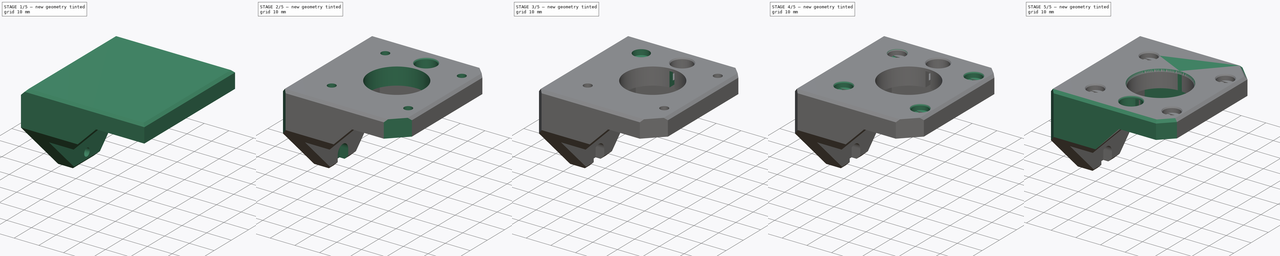
[diagram: build sequence overview — one tinted view per stage of 5, left to right]
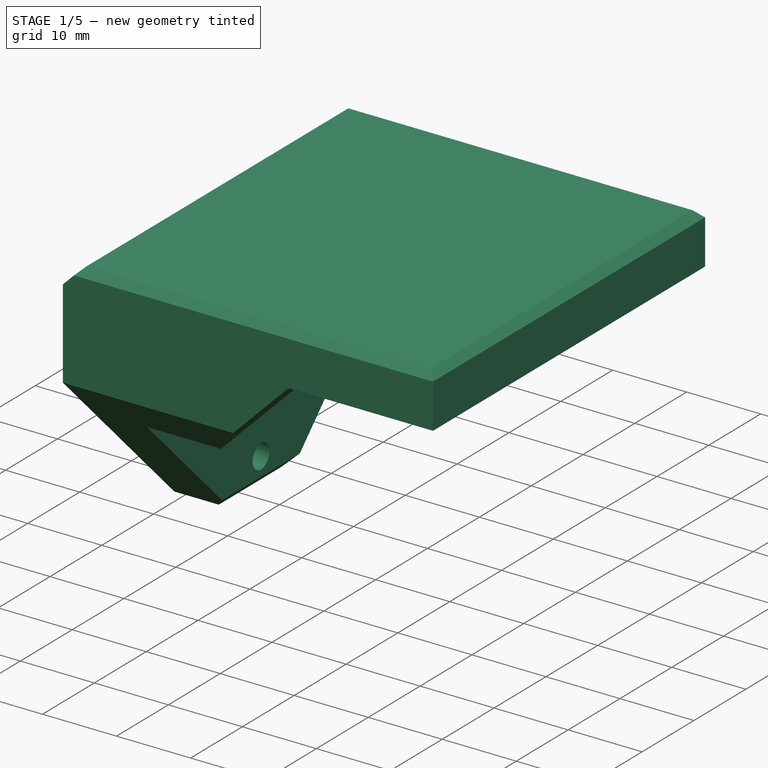
[diagram: stage 1 of 5 — iso view after this stage's code; geometry added in this stage tinted green]
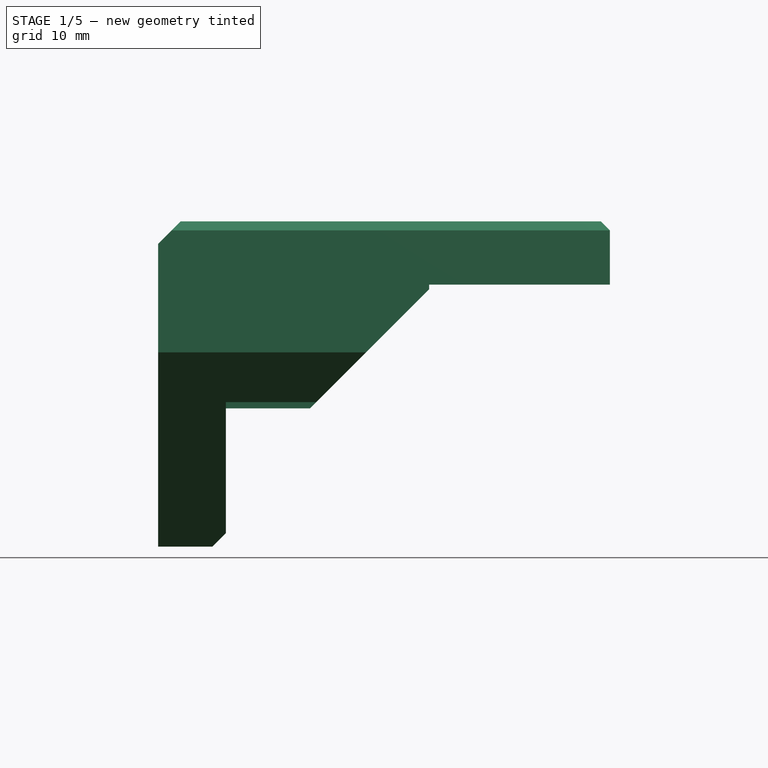
[diagram: stage 1 of 5 — front view after this stage's code; geometry added in this stage tinted green]
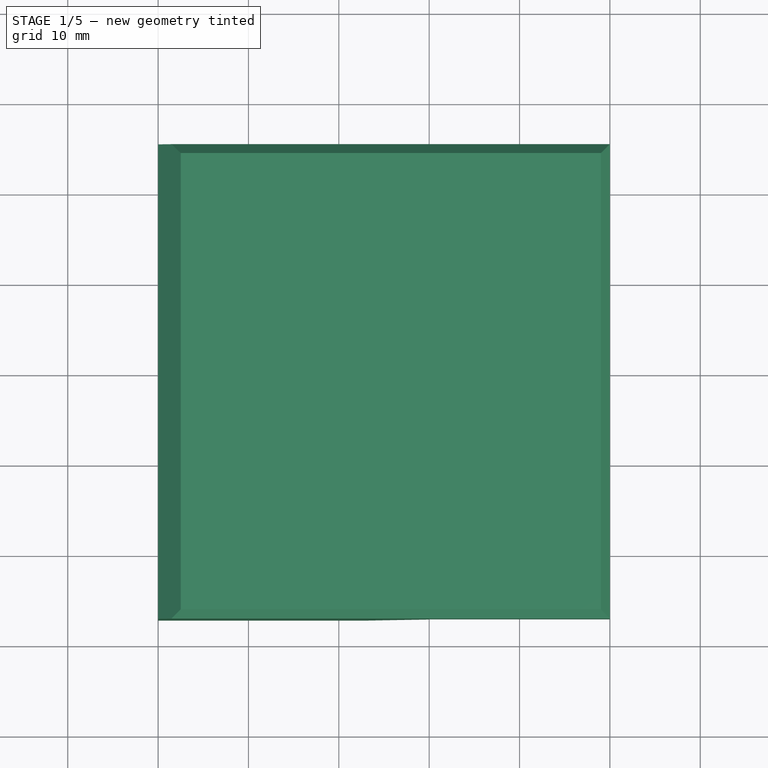
[diagram: stage 1 of 5 — top view after this stage's code; geometry added in this stage tinted green]
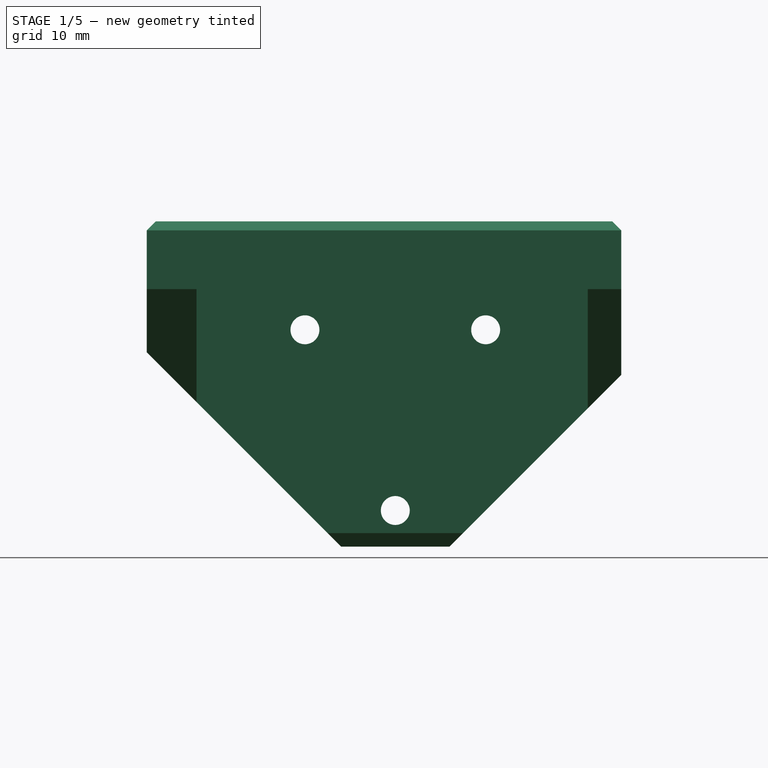
[diagram: stage 1 of 5 — right view after this stage's code; geometry added in this stage tinted green]
FCSTD DOCUMENT  (FreeCAD 0.22R38231 (Git))
Label: _Z-Axis-Bottom
License: Creative Commons Attribution 4.0
LicenseURL: https://creativecommons.org/licenses/by/4.0/
objects: Sketcher::SketchObject×12, PartDesign::Pocket×11, PartDesign::Chamfer×4, PartDesign::Mirrored×2, PartDesign::Body×2, PartDesign::Pad×1, PartDesign::Plane×1, PartDesign::MultiTransform×1, PartDesign::FeatureBase×1, Part::Mirroring×1
note: 72 computed .brp shape members not serialized (recipe doc carries the construction recipe); baked Part::Feature solids carry a one-line shape summary decoded from their .brp

FEATURE [Sketcher::SketchObject] Sketch
  AttachmentSupport = -> [XZ_Plane]
  FullyConstrained = true
  MapMode = 5
  Placement = pos=(0,0,0) rot=(1,0,0;1.5708rad)
  sketch-geometry (11):
    g0: LineSegment StartX=0 StartY=-36 StartZ=0 EndX=6 EndY=-36 EndZ=0
    g1: LineSegment StartX=6 StartY=-36 StartZ=0 EndX=7.5 EndY=-34.5 EndZ=0
    g2: LineSegment StartX=7.5 StartY=-34.5 StartZ=0 EndX=7.5 EndY=-30 EndZ=0
    g3: LineSegment StartX=7.5 StartY=-30 StartZ=0 EndX=30 EndY=-7.5 EndZ=0
    g4: LineSegment StartX=30 StartY=-7.5 StartZ=0 EndX=30 EndY=-7 EndZ=0
    g5: LineSegment StartX=30 StartY=-7 StartZ=0 EndX=50 EndY=-7 EndZ=0
    g6: LineSegment StartX=50 StartY=-7 StartZ=0 EndX=50 EndY=-1 EndZ=0
    g7: LineSegment StartX=50 StartY=-1 StartZ=0 EndX=49 EndY=0 EndZ=0
    g8: LineSegment StartX=49 StartY=0 StartZ=0 EndX=2.5 EndY=0 EndZ=0
    g9: LineSegment StartX=2.5 StartY=0 StartZ=0 EndX=0 EndY=-2.5 EndZ=0
    g10: LineSegment StartX=0 StartY=-2.5 StartZ=0 EndX=0 EndY=-36 EndZ=0
  constraints (33):
    c: PointOnObject(g0,g-2)
    c: Horizontal(g0)
    c: Coincident(g0,g1)
    c: Coincident(g1,g2)
    c: Vertical(g2)
    c: Coincident(g3,g4)
    c: Vertical(g4)
    c: Coincident(g4,g5)
    c: Horizontal(g5)
    c: Coincident(g5,g6)
    c: Vertical(g6)
    c: Coincident(g6,g7)
    c: PointOnObject(g7,g-1)
    c: Coincident(g7,g8)
    c: PointOnObject(g8,g-1)
    c: Coincident(g8,g9)
    c: PointOnObject(g9,g-2)
    c: Coincident(g9,g10)
    c: Coincident(g10,g0)
    c: Angle(g3,g-2) = 0.785398
    c: DistanceY(g5,g-1) = 7
    c: Angle(g-1,g7) = 2.35619
    c: DistanceX(g-1,g6) = 50
    c: DistanceY(g6,g7) = 1
    c: Perpendicular(g9,g7)
    c: DistanceY(g9,g-1) = 2.5
    c: DistanceY(g0,g-1) = 36
    c: DistanceY(g3,g5) = 0.5
    c: DistanceX(g-1,g4) = 30
    c: Coincident(g2,g3)
    c: Parallel(g3,g1)
    c: DistanceX(g0,g1) = 7.5
    c: DistanceY(g0,g1) = 1.5
FEATURE [PartDesign::Pad] Pad
  Direction = (0,-1,2e-16)
  Length = 27.5
  Length2 = 25
  Placement = pos=(0,0,0) rot=(1,0,0;1.5708rad)
  Profile = -> Sketch
  ReferenceAxis = -> Sketch [N_Axis]
  Refine = true
  Suppressed = false
  Type = 4
FEATURE [Sketcher::SketchObject] Sketch001
  AttachmentSupport = -> [YZ_Plane]
  FullyConstrained = true
  MapMode = 5
  Placement = pos=(0,0,0) rot=(0.57735,0.57735,0.57735;2.0944rad)
  sketch-geometry (12):
    g0: LineSegment StartX=-28.5 StartY=1 StartZ=0 EndX=-28.5 EndY=-37 EndZ=0
    g1: LineSegment StartX=-28.5 StartY=-37 StartZ=0 EndX=26 EndY=-37 EndZ=0
    g2: LineSegment StartX=26 StartY=-37 StartZ=0 EndX=26 EndY=1 EndZ=0
    g3: LineSegment StartX=26 StartY=1 StartZ=0 EndX=-28.5 EndY=1 EndZ=0
    g4: LineSegment StartX=-26.5 StartY=0 StartZ=0 EndX=-27.5 EndY=-1 EndZ=0
    g5: LineSegment StartX=-27.5 StartY=-1 StartZ=0 EndX=-27.5 EndY=-14.5 EndZ=0
    g6: LineSegment StartX=-27.5 StartY=-14.5 StartZ=0 EndX=-6 EndY=-36 EndZ=0
    g7: LineSegment StartX=-6 StartY=-36 StartZ=0 EndX=6 EndY=-36 EndZ=0
    g8: LineSegment StartX=6 StartY=-36 StartZ=0 EndX=25 EndY=-17 EndZ=0
    g9: LineSegment StartX=25 StartY=-17 StartZ=0 EndX=25 EndY=-1 EndZ=0
    g10: LineSegment StartX=25 StartY=-1 StartZ=0 EndX=24 EndY=0 EndZ=0
    g11: LineSegment StartX=24 StartY=0 StartZ=0 EndX=-26.5 EndY=0 EndZ=0
  constraints (35):
    c: Coincident(g0,g1)
    c: Coincident(g1,g2)
    c: Coincident(g2,g3)
    c: Coincident(g3,g0)
    c: Vertical(g0)
    c: Vertical(g2)
    c: Horizontal(g1)
    c: Horizontal(g3)
    c: DistanceY(g-1,g2) = 1
    c: DistanceX(g-1,g2) = 26
    c: DistanceX(g0,g-1) = 28.5
    c: DistanceY(g0,g0) = 38
    c: PointOnObject(g4,g-1)
    c: Coincident(g4,g5)
    c: Vertical(g5)
    c: Coincident(g5,g6)
    c: Coincident(g6,g7)
    c: Coincident(g7,g8)
    c: Coincident(g8,g9)
    c: Vertical(g9)
    c: Coincident(g9,g10)
    c: PointOnObject(g10,g-1)
    c: Coincident(g10,g11)
    c: Coincident(g11,g4)
    c: DistanceX(g4,g-1) = 27.5
    c: DistanceX(g-1,g9) = 25
    c: DistanceY(g4,g4) = 1
    c: Angle(g0,g4) = 2.35619
    c: Perpendicular(g10,g4)
    c: Equal(g10,g4)
    c: DistanceY(g7,g-1) = 36
    c: DistanceX(g7,g7) = 12
    c: Symmetric(g6,g7,g-2)
    c: Perpendicular(g6,g4)
    c: Perpendicular(g8,g10)
FEATURE [PartDesign::Pocket] Pocket
  BaseFeature = -> Pad
  Direction = (-1,0,0)
  Length = 5
  Length2 = 5
  Placement = pos=(0,0,0) rot=(1,0,0;1.5708rad)
  Profile = -> Sketch001
  ReferenceAxis = -> Sketch001 [N_Axis]
  Refine = true
  Reversed = true
  Suppressed = false
  Type = 1
FEATURE [Sketcher::SketchObject] Sketch002
  AttachmentOffset = pos=(0,0,-7) rot=(0,0,1;0rad)
  AttachmentSupport = -> [XY_Plane]
  FullyConstrained = true
  MapMode = 5
  Placement = pos=(0,0,-7) rot=(0,0,1;0rad)
  sketch-geometry (4):
    g0: LineSegment StartX=7.5 StartY=21.3 StartZ=0 EndX=7.5 EndY=-22 EndZ=0
    g1: LineSegment StartX=7.5 StartY=-22 StartZ=0 EndX=50 EndY=-22 EndZ=0
    g2: LineSegment StartX=50 StartY=-22 StartZ=0 EndX=50 EndY=21.3 EndZ=0
    g3: LineSegment StartX=50 StartY=21.3 StartZ=0 EndX=7.5 EndY=21.3 EndZ=0
  constraints (12):
    c: Coincident(g0,g1)
    c: Coincident(g1,g2)
    c: Coincident(g2,g3)
    c: Coincident(g3,g0)
    c: Vertical(g0)
    c: Vertical(g2)
    c: Horizontal(g1)
    c: Horizontal(g3)
    c: DistanceY(g0,g-1) = 22
    c: DistanceX(g-1,g0) = 7.5
    c: DistanceY(g-1,g0) = 21.3
    c: DistanceX(g-1,g2) = 50
FEATURE [PartDesign::Pocket] Pocket001
  BaseFeature = -> Pocket
  Direction = (0,0,-1)
  Length = 5
  Length2 = 5
  Placement = pos=(0,0,0) rot=(1,0,0;1.5708rad)
  Profile = -> Sketch002
  ReferenceAxis = -> Sketch002 [N_Axis]
  Refine = true
  Suppressed = false
  Type = 1
FEATURE [Sketcher::SketchObject] Sketch003
  AttachmentSupport = -> [YZ_Plane]
  FullyConstrained = true
  MapMode = 5
  Placement = pos=(0,0,0) rot=(0.57735,0.57735,0.57735;2.0944rad)
  sketch-geometry (3):
    g0: Circle CenterX=-10 CenterY=-12 CenterZ=0 NormalX=0 NormalY=0 NormalZ=1 AngleXU=0 Radius=1.6
    g1: Circle CenterX=10 CenterY=-12 CenterZ=0 NormalX=0 NormalY=0 NormalZ=1 AngleXU=0 Radius=1.6
    g2: Circle CenterX=0 CenterY=-32 CenterZ=0 NormalX=0 NormalY=0 NormalZ=1 AngleXU=0 Radius=1.6
  constraints (8):
    c: Symmetric(g0,g1,g-2)
    c: DistanceX(g0,g1) = 20
    c: DistanceY(g0,g-1) = 12
    c: Equal(g0,g1)
    c: Diameter(g0) = 3.2
    c: PointOnObject(g2,g-2)
    c: DistanceY(g2,g0) = 20
    c: Equal(g1,g2)
FEATURE [PartDesign::Pocket] Pocket002
  BaseFeature = -> Pocket001
  Direction = (-1,0,0)
  Length = 5
  Length2 = 5
  Placement = pos=(0,0,0) rot=(1,0,0;1.5708rad)
  Profile = -> Sketch003
  ReferenceAxis = -> Sketch003 [N_Axis]
  Refine = true
  Reversed = true
  Suppressed = false
  Type = 1
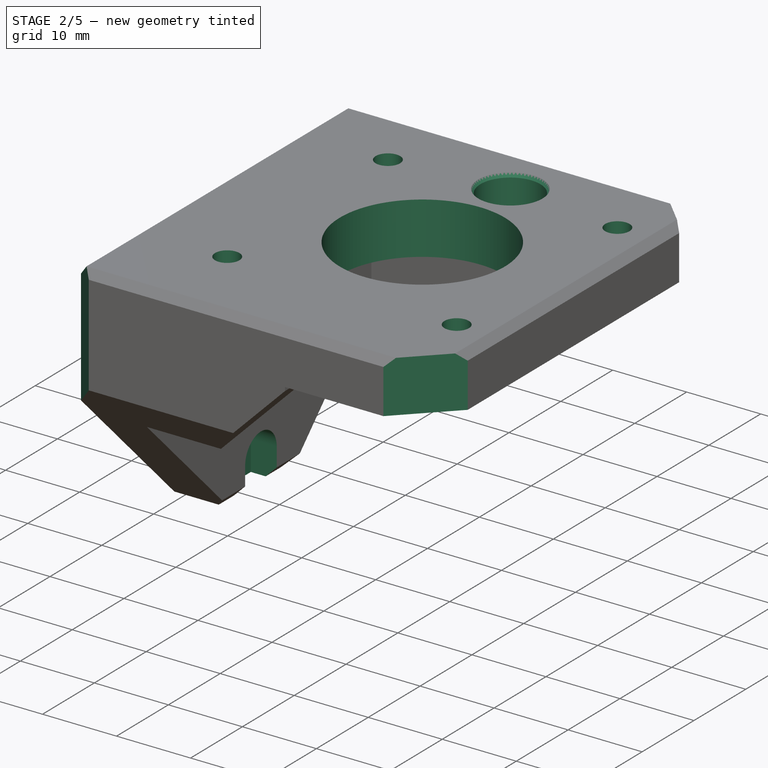
[diagram: stage 2 of 5 — iso view after this stage's code; geometry added in this stage tinted green]
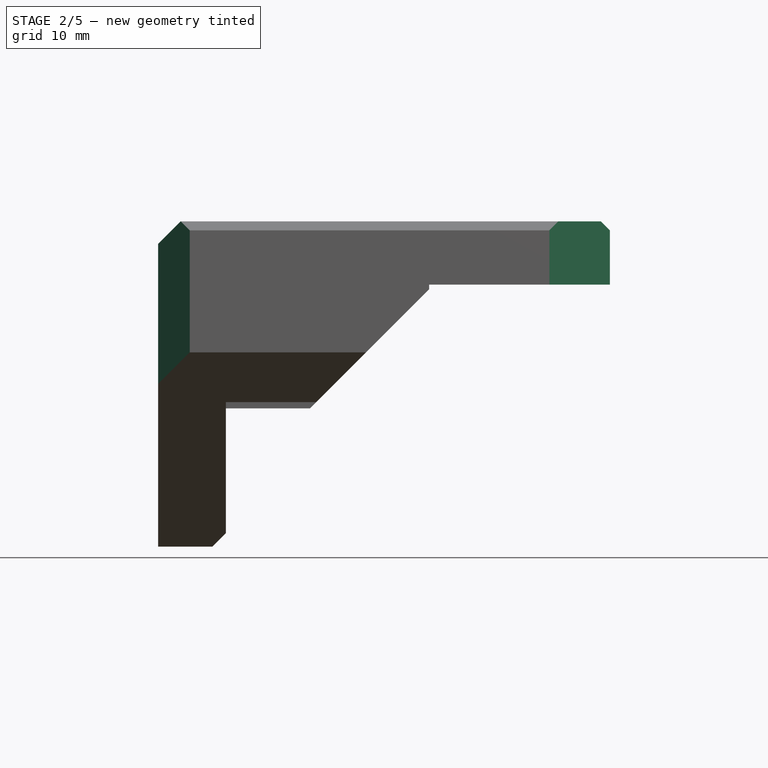
[diagram: stage 2 of 5 — front view after this stage's code; geometry added in this stage tinted green]
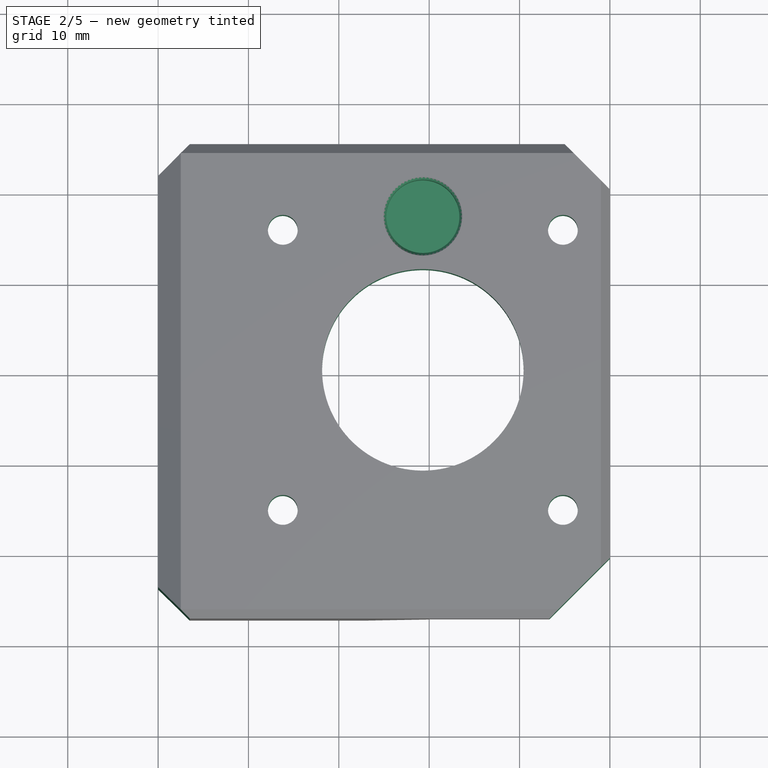
[diagram: stage 2 of 5 — top view after this stage's code; geometry added in this stage tinted green]
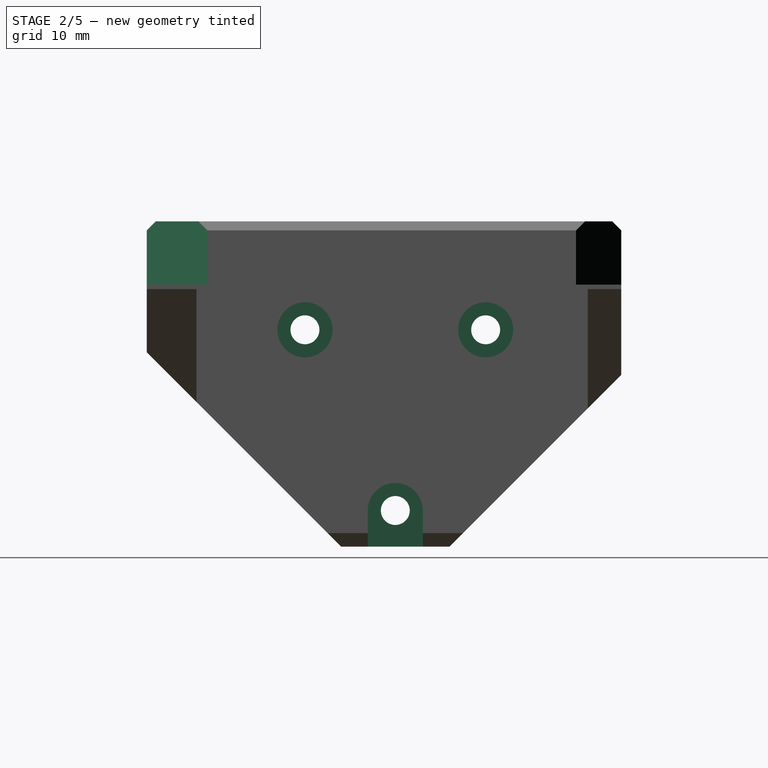
[diagram: stage 2 of 5 — right view after this stage's code; geometry added in this stage tinted green]
FEATURE [Sketcher::SketchObject] Sketch004
  AttachmentOffset = pos=(0,0,7.5) rot=(0,0,1;0rad)
  AttachmentSupport = -> [YZ_Plane]
  ExternalGeometry = -> [Sketch003]
  FullyConstrained = true
  MapMode = 5
  Placement = pos=(7.5,0,0) rot=(0.57735,0.57735,0.57735;2.0944rad)
  sketch-geometry (6):
    g0: Circle CenterX=-10 CenterY=-12 CenterZ=0 NormalX=0 NormalY=0 NormalZ=1 AngleXU=0 Radius=3.05
    g1: Circle CenterX=10 CenterY=-12 CenterZ=0 NormalX=0 NormalY=0 NormalZ=1 AngleXU=0 Radius=3.05
    g2: ArcOfCircle CenterX=0 CenterY=-32 CenterZ=0 NormalX=0 NormalY=0 NormalZ=1 AngleXU=0 Radius=3.05 StartAngle=0 EndAngle=3.14159
    g3: LineSegment StartX=-3.05 StartY=-32 StartZ=0 EndX=-3.05 EndY=-36.5 EndZ=0
    g4: LineSegment StartX=-3.05 StartY=-36.5 StartZ=0 EndX=3.05 EndY=-36.5 EndZ=0
    g5: LineSegment StartX=3.05 StartY=-36.5 StartZ=0 EndX=3.05 EndY=-32 EndZ=0
  constraints (14):
    c: Coincident(g0,g-3)
    c: Diameter(g1) = 6.1
    c: Equal(g1,g0)
    c: Coincident(g2,g-5)
    c: Tangent(g2,g3) = -1.5708
    c: Coincident(g3,g4)
    c: Horizontal(g4)
    c: Coincident(g4,g5)
    c: Vertical(g5)
    c: Tangent(g5,g2) = -1.5708
    c: Vertical(g3)
    c: Equal(g0,g2)
    c: DistanceY(g3,g3) = 4.5
    c: Coincident(g1,g-4)
FEATURE [PartDesign::Pocket] Pocket003
  BaseFeature = -> Pocket002
  Direction = (-1,0,0)
  Length = 3.5
  Length2 = 5
  Placement = pos=(0,0,0) rot=(1,0,0;1.5708rad)
  Profile = -> Sketch004
  ReferenceAxis = -> Sketch004 [N_Axis]
  Refine = true
  Suppressed = false
  Type = 0
FEATURE [Sketcher::SketchObject] Sketch005
  AttachmentSupport = -> [XY_Plane]
  FullyConstrained = true
  MapMode = 5
  sketch-geometry (17):
    g0: LineSegment StartX=-2 StartY=27 StartZ=0 EndX=-2 EndY=-29.5 EndZ=0
    g1: LineSegment StartX=-2 StartY=-29.5 StartZ=0 EndX=52 EndY=-29.5 EndZ=0
    g2: LineSegment StartX=52 StartY=-29.5 StartZ=0 EndX=52 EndY=27 EndZ=0
    g3: LineSegment StartX=52 StartY=27 StartZ=0 EndX=-2 EndY=27 EndZ=0
    g4: LineSegment StartX=-4e-16 StartY=21.5 StartZ=0 EndX=0 EndY=-24 EndZ=0
    g5: LineSegment StartX=0 StartY=-24 StartZ=0 EndX=3.5 EndY=-27.5 EndZ=0
    g6: LineSegment StartX=3.5 StartY=-27.5 StartZ=0 EndX=43.3 EndY=-27.5 EndZ=0
    g7: LineSegment StartX=43.3 StartY=-27.5 StartZ=0 EndX=50 EndY=-20.8 EndZ=0
    g8: LineSegment StartX=50 StartY=-20.8 StartZ=0 EndX=50 EndY=20 EndZ=0
    g9: LineSegment StartX=50 StartY=20 StartZ=0 EndX=45 EndY=25 EndZ=0
    g10: LineSegment StartX=45 StartY=25 StartZ=0 EndX=3.5 EndY=25 EndZ=0
    g11: LineSegment StartX=3.5 StartY=25 StartZ=0 EndX=-4e-16 EndY=21.5 EndZ=0
    g12: Circle CenterX=13.8 CenterY=15.5 CenterZ=0 NormalX=0 NormalY=0 NormalZ=1 AngleXU=0 Radius=1.65
    g13: Circle CenterX=44.8 CenterY=15.5 CenterZ=0 NormalX=0 NormalY=0 NormalZ=1 AngleXU=0 Radius=1.65
    g14: Circle CenterX=44.8 CenterY=-15.5 CenterZ=0 NormalX=0 NormalY=0 NormalZ=1 AngleXU=0 Radius=1.65
    g15: Circle CenterX=13.8 CenterY=-15.5 CenterZ=0 NormalX=0 NormalY=0 NormalZ=1 AngleXU=0 Radius=1.65
    g16: Circle CenterX=29.3 CenterY=0 CenterZ=0 NormalX=0 NormalY=0 NormalZ=1 AngleXU=0 Radius=11.15
  constraints (50):
    c: Coincident(g0,g1)
    c: Coincident(g1,g2)
    c: Coincident(g2,g3)
    c: Coincident(g3,g0)
    c: Vertical(g0)
    c: Vertical(g2)
    c: Horizontal(g1)
    c: Horizontal(g3)
    c: DistanceX(g0,g-1) = 2
    c: DistanceX(g3,g3) = 54
    c: DistanceY(g-1,g0) = 27
    c: DistanceY(g0,g-1) = 29.5
    c: PointOnObject(g4,g-2)
    c: PointOnObject(g4,g-2)
    c: Coincident(g4,g5)
    c: Coincident(g5,g6)
    c: Horizontal(g6)
    c: Coincident(g6,g7)
    c: Coincident(g7,g8)
    c: Vertical(g8)
    c: Coincident(g8,g9)
    c: Coincident(g9,g10)
    c: Horizontal(g10)
    c: Coincident(g10,g11)
    c: Coincident(g11,g4)
    c: DistanceY(g-1,g10) = 25
    c: DistanceY(g5,g-1) = 27.5
    c: DistanceX(g-1,g7) = 50
    c: Angle(g7,g6) = 2.35619
    c: Perpendicular(g9,g7)
    c: Perpendicular(g11,g9)
    c: Perpendicular(g5,g11)
    c: Equal(g5,g11)
    c: DistanceY(g5,g4) = 3.5
    c: DistanceY(g6,g7) = 6.7
    c: DistanceY(g8,g9) = 5
    c: Horizontal(g12,g13)
    c: Horizontal(g15,g14)
    c: Vertical(g12,g15)
    c: Vertical(g13,g14)
    c: PointOnObject(g16,g-1)
    c: Diameter(g16) = 22.3
    c: DistanceX(g-1,g16) = 29.3
    c: Symmetric(g12,g14,g16)
    c: DistanceY(g15,g12) = 31
    c: DistanceX(g15,g14) = 31
    c: Equal(g13,g12)
    c: Equal(g13,g15)
    c: Equal(g13,g14)
    c: Diameter(g13) = 3.3
FEATURE [PartDesign::Pocket] Pocket004
  BaseFeature = -> Pocket003
  Direction = (0,0,-1)
  Length = 5
  Length2 = 5
  Placement = pos=(0,0,0) rot=(1,0,0;1.5708rad)
  Profile = -> Sketch005
  ReferenceAxis = -> Sketch005 [N_Axis]
  Refine = true
  Suppressed = false
  Type = 1
FEATURE [Sketcher::SketchObject] Sketch006
  AttachmentSupport = -> [XY_Plane]
  FullyConstrained = true
  MapMode = 5
  sketch-geometry (1):
    g0: Circle CenterX=29.3 CenterY=17 CenterZ=0 NormalX=0 NormalY=0 NormalZ=1 AngleXU=0 Radius=4.05
  constraints (3):
    c: Diameter(g0) = 8.1
    c: DistanceX(g-1,g0) = 29.3
    c: DistanceY(g-1,g0) = 17
FEATURE [PartDesign::Pocket] Pocket005
  BaseFeature = -> Pocket004
  Direction = (0,0,-1)
  Length = 5.2
  Length2 = 5
  Placement = pos=(0,0,0) rot=(1,0,0;1.5708rad)
  Profile = -> Sketch006
  ReferenceAxis = -> Sketch006 [N_Axis]
  Refine = true
  Suppressed = false
  Type = 0
FEATURE [Sketcher::SketchObject] Sketch007
  AttachmentOffset = pos=(0,0,-7) rot=(0,0,1;0rad)
  AttachmentSupport = -> [XY_Plane]
  FullyConstrained = true
  MapMode = 5
  Placement = pos=(0,0,-7) rot=(0,0,1;0rad)
  sketch-geometry (4):
    g0: LineSegment StartX=28.3 StartY=0 StartZ=0 EndX=30.3 EndY=0 EndZ=0
    g1: LineSegment StartX=30.3 StartY=0 StartZ=0 EndX=30.3 EndY=18 EndZ=0
    g2: LineSegment StartX=30.3 StartY=18 StartZ=0 EndX=28.3 EndY=18 EndZ=0
    g3: LineSegment StartX=28.3 StartY=18 StartZ=0 EndX=28.3 EndY=0 EndZ=0
  constraints (12):
    c: Coincident(g0,g1)
    c: Coincident(g1,g2)
    c: Coincident(g2,g3)
    c: Coincident(g3,g0)
    c: Horizontal(g0)
    c: Horizontal(g2)
    c: Vertical(g1)
    c: Vertical(g3)
    c: DistanceY(g-1,g2) = 18
    c: DistanceX(g-1,g2) = 28.3
    c: DistanceX(g2,g2) = 2
    c: PointOnObject(g0,g-1)
FEATURE [PartDesign::Plane] DatumPlane
  AttachmentOffset = pos=(0,0,29.3) rot=(0,0,1;0rad)
  AttachmentSupport = -> [YZ_Plane]
  Length = 63.8181
  MapMode = 5
  Placement = pos=(29.3,0,0) rot=(0.57735,0.57735,0.57735;2.0944rad)
  ResizeMode = 0
  Width = 72.3181
FEATURE [PartDesign::Mirrored] Mirrored001
  MirrorPlane = -> DatumPlane
  Placement = pos=(0,0,0) rot=(1,0,0;1.5708rad)
  Refine = true
  Suppressed = false
  TransformMode = 0
FEATURE [PartDesign::Chamfer] Chamfer
  Angle = 45
  Base = -> Pocket005 [Edge106]
  BaseFeature = -> Pocket005
  ChamferType = 1
  FlipDirection = false
  Placement = pos=(0,0,0) rot=(1,0,0;1.5708rad)
  Refine = true
  Size = 0.3
  Size2 = 0.5
  SupportTransform = false
  Suppressed = false
  UseAllEdges = false
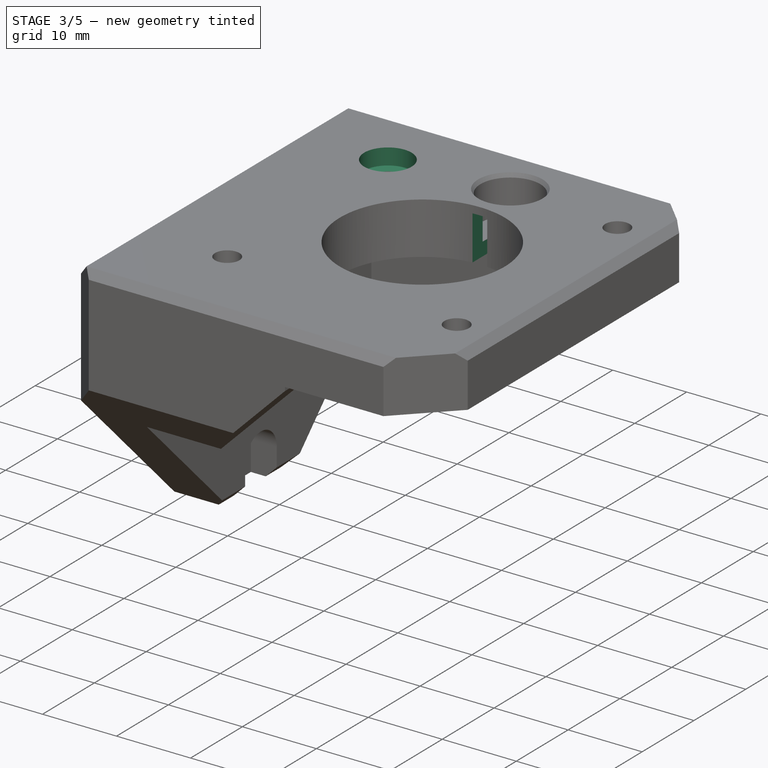
[diagram: stage 3 of 5 — iso view after this stage's code; geometry added in this stage tinted green]
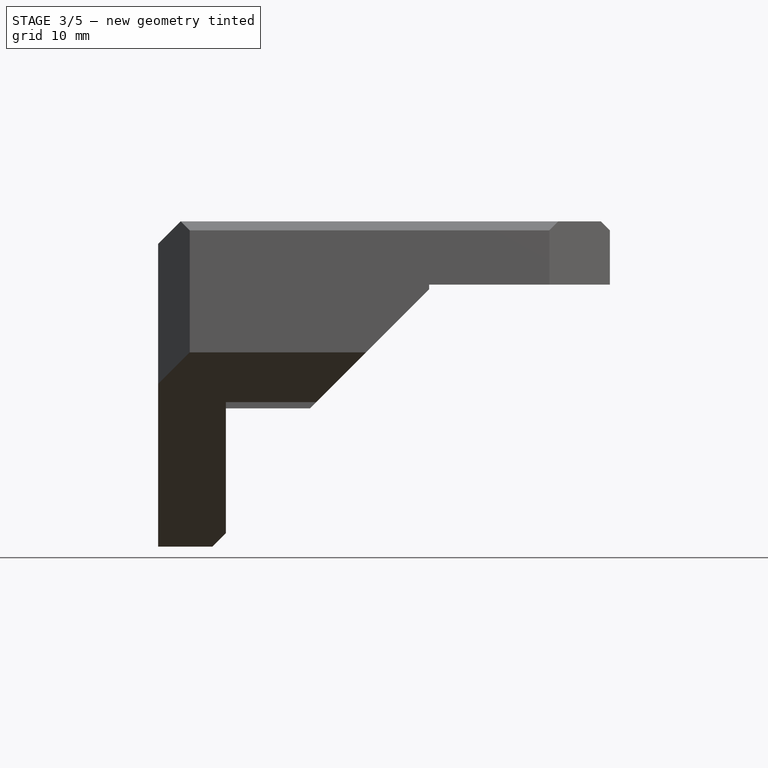
[diagram: stage 3 of 5 — front view after this stage's code; geometry added in this stage tinted green]
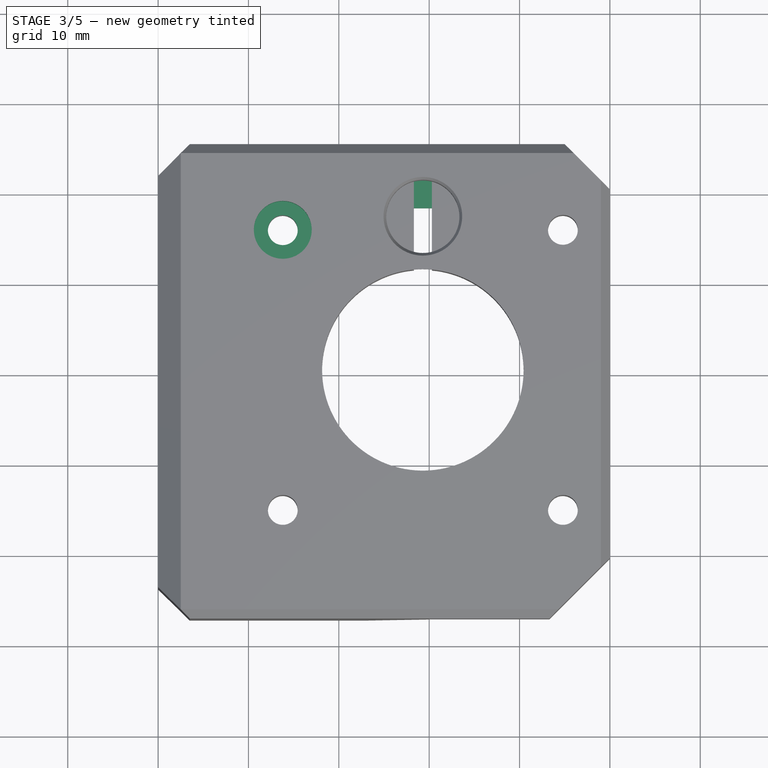
[diagram: stage 3 of 5 — top view after this stage's code; geometry added in this stage tinted green]
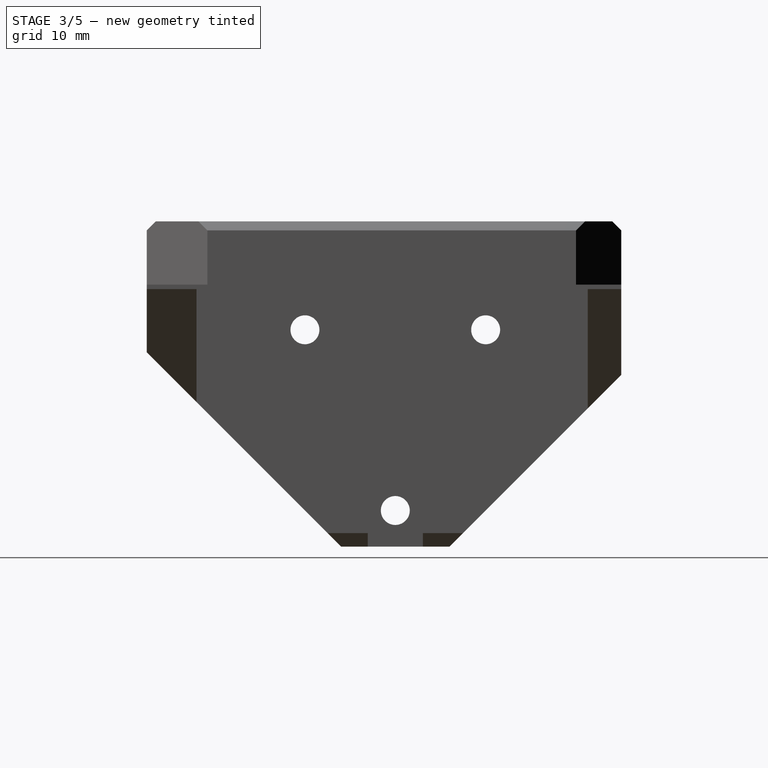
[diagram: stage 3 of 5 — right view after this stage's code; geometry added in this stage tinted green]
FEATURE [PartDesign::Pocket] Pocket006
  BaseFeature = -> Chamfer
  Direction = (0,0,-1)
  Length = 6
  Length2 = 5
  Placement = pos=(0,0,0) rot=(1,0,0;1.5708rad)
  Profile = -> Sketch007
  ReferenceAxis = -> Sketch007 [N_Axis]
  Refine = true
  Reversed = true
  Suppressed = false
  Type = 0
FEATURE [Sketcher::SketchObject] Sketch008
  AttachmentSupport = -> [XY_Plane]
  ExternalGeometry = -> [Pocket006]
  FullyConstrained = false
  MapMode = 5
  sketch-geometry (4):
    g0: ArcOfCircle CenterX=29.3 CenterY=17 CenterZ=0 NormalX=0 NormalY=0 NormalZ=1 AngleXU=0 Radius=4.05 StartAngle=1.3213 EndAngle=1.82029
    g1: LineSegment StartX=28.3 StartY=20.9246 StartZ=0 EndX=28.3 EndY=17 EndZ=0
    g2: LineSegment StartX=28.3 StartY=17 StartZ=0 EndX=30.3 EndY=17 EndZ=0
    g3: LineSegment StartX=30.3 StartY=17 StartZ=0 EndX=30.3 EndY=20.9246 EndZ=0
  constraints (9):
    c: Coincident(g0,g1)
    c: Vertical(g1)
    c: Coincident(g1,g2)
    c: Horizontal(g2)
    c: Coincident(g2,g3)
    c: Coincident(g3,g0)
    c: Vertical(g3)
    c: Symmetric(g2,g1,g0)
    c: DistanceX(g2,g2) = 2
FEATURE [PartDesign::Pocket] Pocket007
  BaseFeature = -> Pocket006
  Direction = (0,0,-1)
  Length = 5.5
  Length2 = 5
  Placement = pos=(0,0,0) rot=(1,0,0;1.5708rad)
  Profile = -> Sketch008
  ReferenceAxis = -> Sketch008 [N_Axis]
  Refine = true
  Suppressed = false
  Type = 0
FEATURE [Sketcher::SketchObject] Sketch009
  AttachmentSupport = -> [XY_Plane]
  ExternalGeometry = -> [Pocket007]
  FullyConstrained = true
  MapMode = 5
  sketch-geometry (1):
    g0: Circle CenterX=13.8 CenterY=15.5 CenterZ=0 NormalX=0 NormalY=0 NormalZ=1 AngleXU=0 Radius=3.2
  constraints (2):
    c: Coincident(g0,g-3)
    c: Diameter(g0) = 6.4
FEATURE [PartDesign::Pocket] Pocket008
  BaseFeature = -> Pocket007
  Direction = (0,0,-1)
  Length = 2.2
  Length2 = 5
  Placement = pos=(0,0,0) rot=(1,0,0;1.5708rad)
  Profile = -> Sketch009
  ReferenceAxis = -> Sketch009 [N_Axis]
  Refine = true
  Suppressed = false
  Type = 0
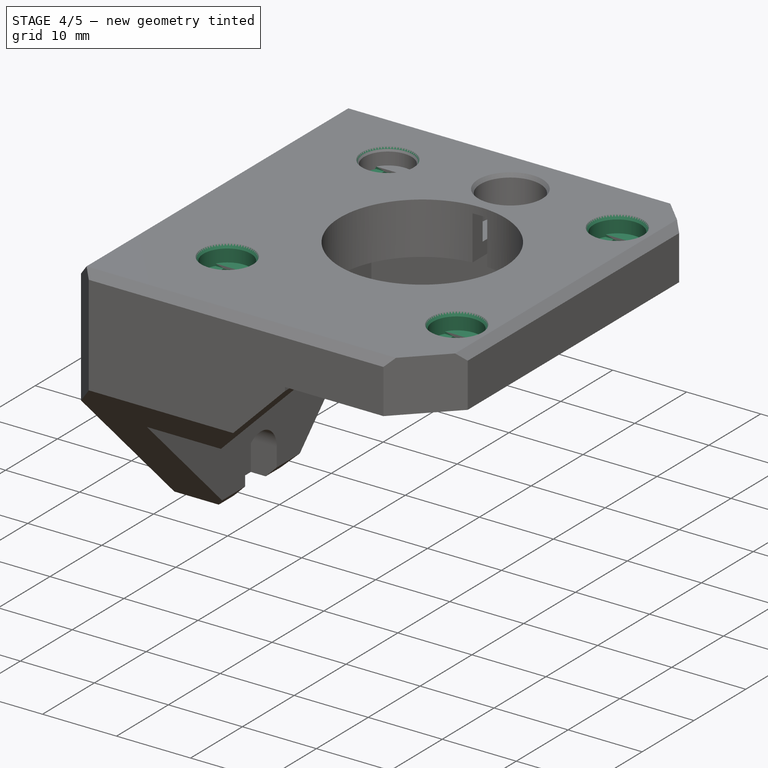
[diagram: stage 4 of 5 — iso view after this stage's code; geometry added in this stage tinted green]
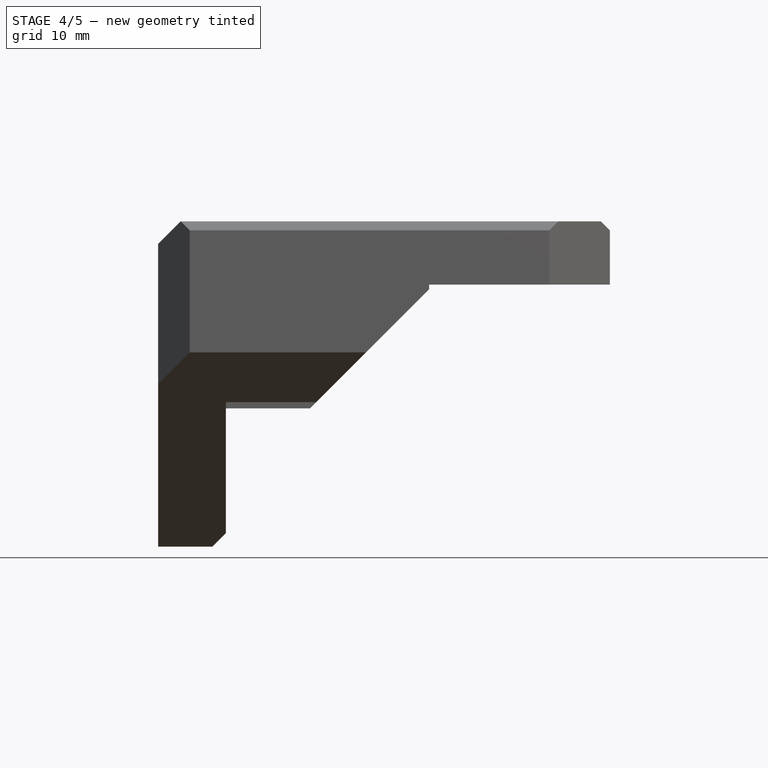
[diagram: stage 4 of 5 — front view after this stage's code; geometry added in this stage tinted green]
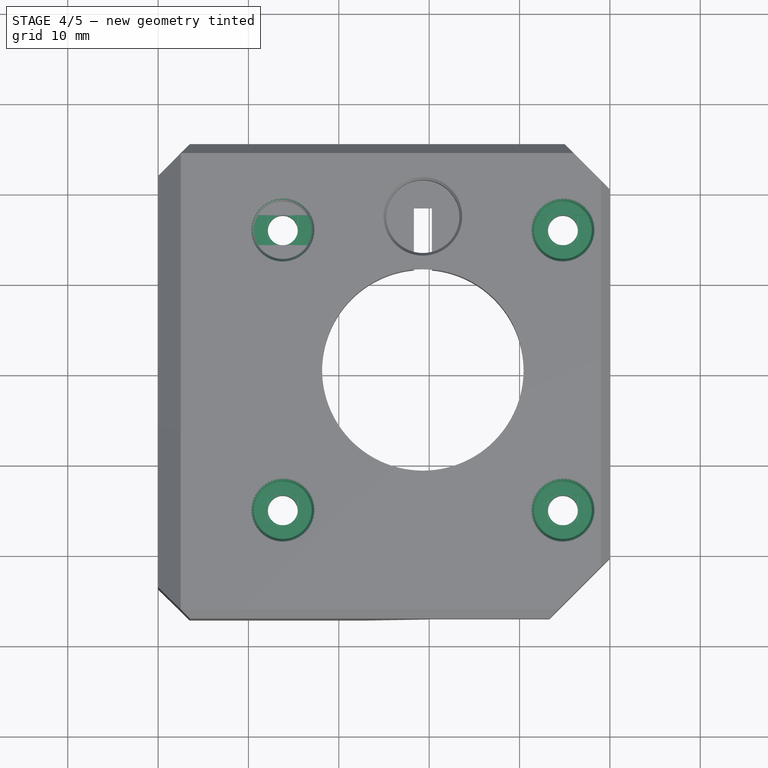
[diagram: stage 4 of 5 — top view after this stage's code; geometry added in this stage tinted green]
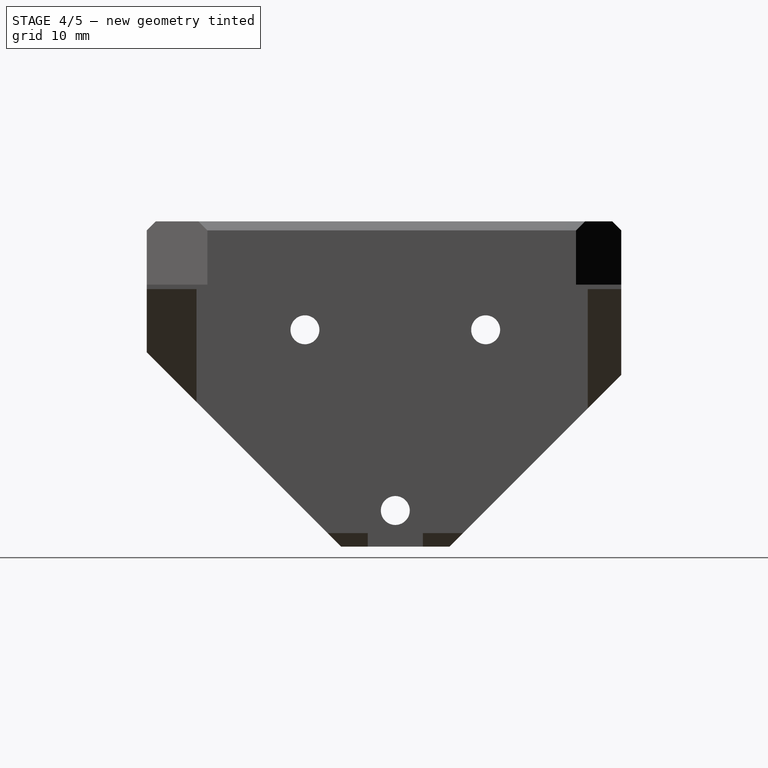
[diagram: stage 4 of 5 — right view after this stage's code; geometry added in this stage tinted green]
FEATURE [Sketcher::SketchObject] Sketch010
  AttachmentSupport = -> [XY_Plane]
  ExternalGeometry = -> [Sketch009]
  FullyConstrained = true
  MapMode = 5
  sketch-geometry (5):
    g0: LineSegment StartX=12.15 StartY=13.85 StartZ=0 EndX=15.45 EndY=13.85 EndZ=0
    g1: LineSegment StartX=15.45 StartY=13.85 StartZ=0 EndX=15.45 EndY=17.15 EndZ=0
    g2: LineSegment StartX=15.45 StartY=17.15 StartZ=0 EndX=12.15 EndY=17.15 EndZ=0
    g3: LineSegment StartX=12.15 StartY=17.15 StartZ=0 EndX=12.15 EndY=13.85 EndZ=0
    g4: GeomPoint X=13.8 Y=15.5 Z=0
  constraints (12):
    c: Coincident(g0,g1)
    c: Coincident(g1,g2)
    c: Coincident(g2,g3)
    c: Coincident(g3,g0)
    c: Horizontal(g0)
    c: Horizontal(g2)
    c: Vertical(g1)
    c: Vertical(g3)
    c: Symmetric(g2,g0,g4)
    c: Coincident(g4,g-3)
    c: Equal(g2,g3)
    c: DistanceX(g2,g2) = 3.3
FEATURE [Sketcher::SketchObject] Sketch011
  AttachmentSupport = -> [XY_Plane]
  ExternalGeometry = -> [Sketch009]
  FullyConstrained = true
  MapMode = 5
  sketch-geometry (4):
    g0: ArcOfCircle CenterX=13.8 CenterY=15.5 CenterZ=0 NormalX=0 NormalY=0 NormalZ=1 AngleXU=0 Radius=3.2 StartAngle=2.59986 EndAngle=3.68333
    g1: ArcOfCircle CenterX=13.8 CenterY=15.5 CenterZ=0 NormalX=0 NormalY=0 NormalZ=1 AngleXU=0 Radius=3.2 StartAngle=5.74145 EndAngle=6.82492
    g2: LineSegment StartX=11.0582 StartY=17.15 StartZ=0 EndX=16.5418 EndY=17.15 EndZ=0
    g3: LineSegment StartX=11.0582 StartY=13.85 StartZ=0 EndX=16.5418 EndY=13.85 EndZ=0
  constraints (11):
    c: Coincident(g0,g-3)
    c: PointOnObject(g0,g-3)
    c: Coincident(g1,g0)
    c: Coincident(g2,g0)
    c: Coincident(g2,g1)
    c: Coincident(g3,g0)
    c: Coincident(g3,g1)
    c: Horizontal(g3)
    c: Horizontal(g2)
    c: Symmetric(g0,g1,g0)
    c: DistanceY(g0,g0) = 3.3
FEATURE [PartDesign::Mirrored] Mirrored
  MirrorPlane = -> Sketch009 [H_Axis]
  Placement = pos=(0,0,0) rot=(1,0,0;1.5708rad)
  Refine = true
  Suppressed = false
  TransformMode = 0
FEATURE [PartDesign::Chamfer] Chamfer001
  Angle = 45
  Base = -> Pocket008 [Edge12]
  BaseFeature = -> Pocket008
  ChamferType = 1
  FlipDirection = false
  Placement = pos=(0,0,0) rot=(1,0,0;1.5708rad)
  Refine = true
  Size = 0.3
  Size2 = 0.5
  SupportTransform = false
  Suppressed = false
  UseAllEdges = false
FEATURE [PartDesign::Pocket] Pocket009
  BaseFeature = -> Chamfer001
  Direction = (0,0,-1)
  Length = 2.8
  Length2 = 5
  Placement = pos=(0,0,0) rot=(1,0,0;1.5708rad)
  Profile = -> Sketch010
  ReferenceAxis = -> Sketch010 [N_Axis]
  Refine = true
  Suppressed = false
  Type = 0
FEATURE [PartDesign::Pocket] Pocket010
  BaseFeature = -> Pocket009
  Direction = (0,0,-1)
  Length = 2.5
  Length2 = 5
  Placement = pos=(0,0,0) rot=(1,0,0;1.5708rad)
  Profile = -> Sketch011
  ReferenceAxis = -> Sketch011 [N_Axis]
  Refine = true
  Suppressed = false
  Type = 0
FEATURE [PartDesign::MultiTransform] MultiTransform
  BaseFeature = -> Pocket010
  Originals = -> [Pocket008,Pocket009,Pocket010,Chamfer001]
  Placement = pos=(0,0,0) rot=(1,0,0;1.5708rad)
  Refine = true
  Suppressed = false
  TransformMode = 0
  Transformations = -> [Mirrored,Mirrored001]
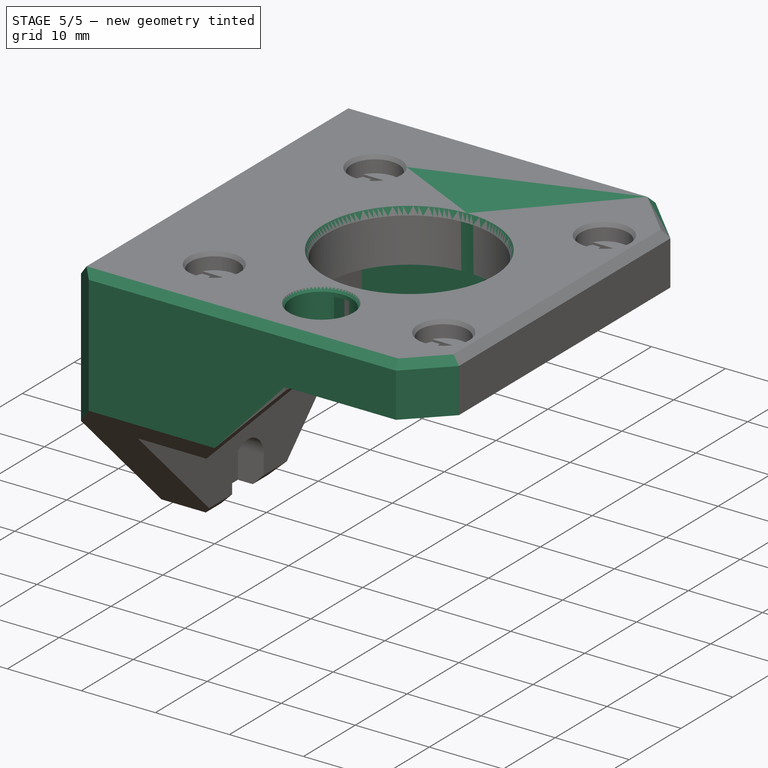
[diagram: stage 5 of 5 — iso view after this stage's code; geometry added in this stage tinted green]
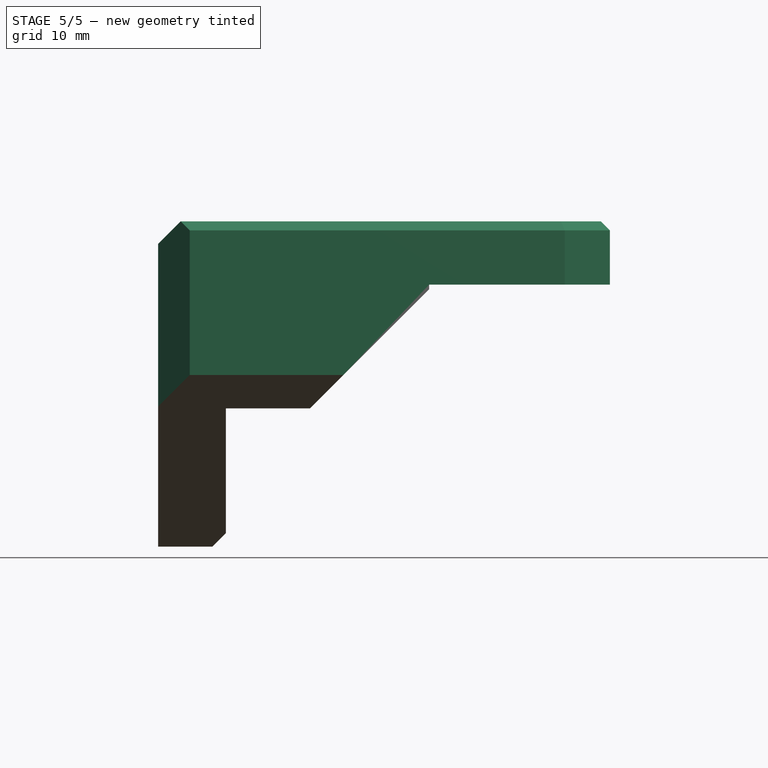
[diagram: stage 5 of 5 — front view after this stage's code; geometry added in this stage tinted green]
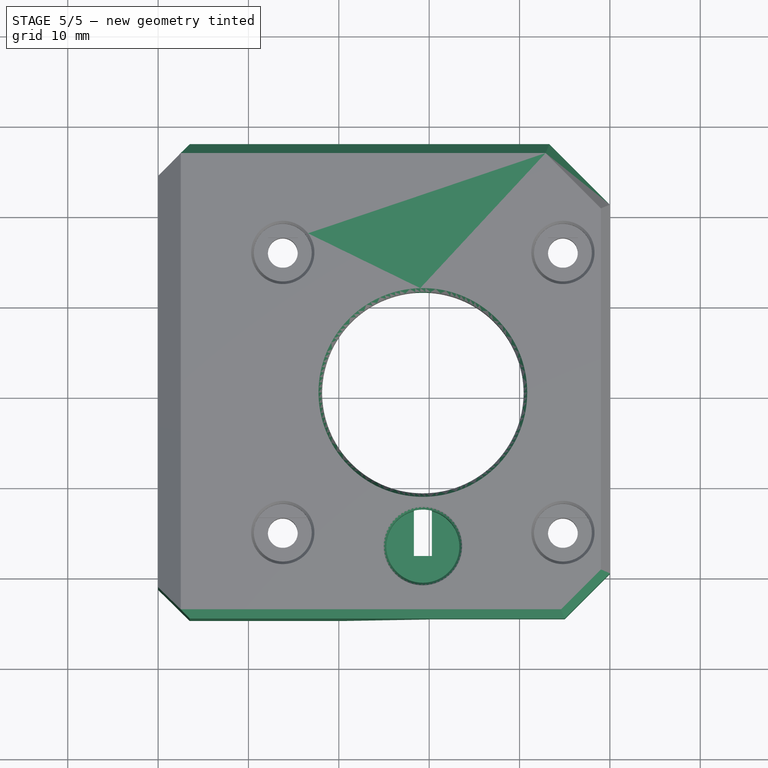
[diagram: stage 5 of 5 — top view after this stage's code; geometry added in this stage tinted green]
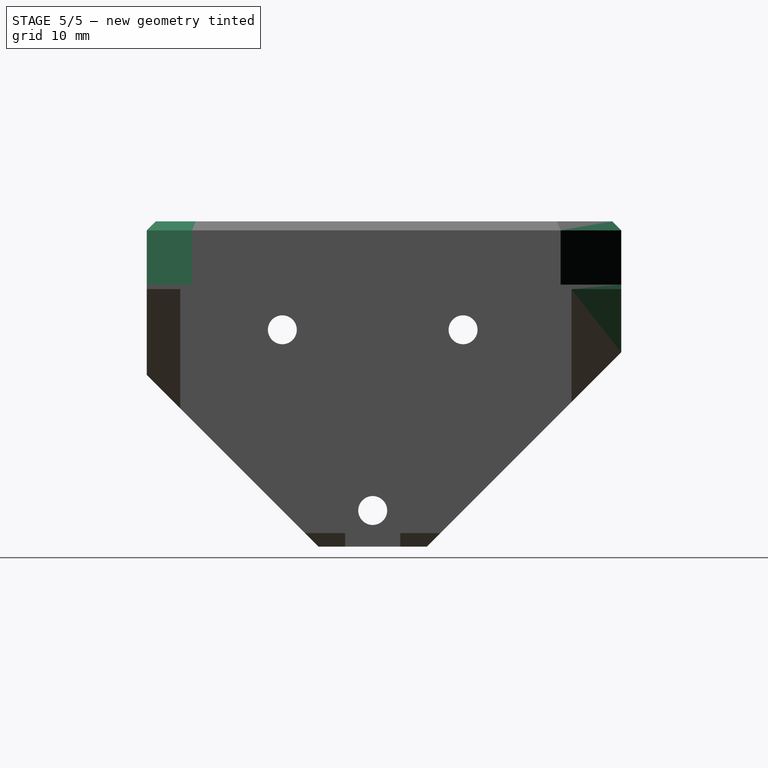
[diagram: stage 5 of 5 — right view after this stage's code; geometry added in this stage tinted green]
FEATURE [PartDesign::Chamfer] Chamfer002
  Angle = 45
  Base = -> MultiTransform [Edge71,Edge70]
  BaseFeature = -> MultiTransform
  ChamferType = 0
  FlipDirection = false
  Placement = pos=(0,0,0) rot=(1,0,0;1.5708rad)
  Refine = true
  Size = 1
  Size2 = 1
  SupportTransform = false
  Suppressed = false
  UseAllEdges = false
FEATURE [PartDesign::Chamfer] Chamfer003
  Angle = 45
  Base = -> Chamfer002 [Edge8]
  BaseFeature = -> Chamfer002
  ChamferType = 1
  FlipDirection = false
  Placement = pos=(0,0,0) rot=(1,0,0;1.5708rad)
  Refine = true
  Size = 0.4
  Size2 = 0.99
  SupportTransform = false
  Suppressed = false
  UseAllEdges = false
FEATURE [PartDesign::Body] Body  label="Z-Axis-Bottom_R"
  AllowCompound = false
  Group = -> [Sketch,Pad,Sketch001,Pocket,Sketch002,Pocket001,Sketch003,Pocket002,Sketch004,Pocket003,Sketch005,Pocket004,Sketch006,Pocket005,Sketch007,Chamfer,Pocket006,Sketch008,Pocket007,Sketch009,Pocket008,Sketch010,Chamfer001,Pocket009,Sketch011,Pocket010,DatumPlane,MultiTransform,Mirrored,Mirrored001,Chamfer002,Chamfer003]
  Origin = -> Origin
  Tip = -> Chamfer003
FEATURE [PartDesign::FeatureBase] Clone
  BaseFeature = -> Body
  Suppressed = false
FEATURE [PartDesign::Body] Body001
  AllowCompound = false
  Group = -> [Clone]
  Origin = -> Origin001
  Tip = -> Clone
FEATURE [Part::Mirroring] Part__Mirroring  label="Z-Axis-Bottom_L"
  Base = (0,0,0)
  Normal = (0,1,0)
  Source = -> Body001
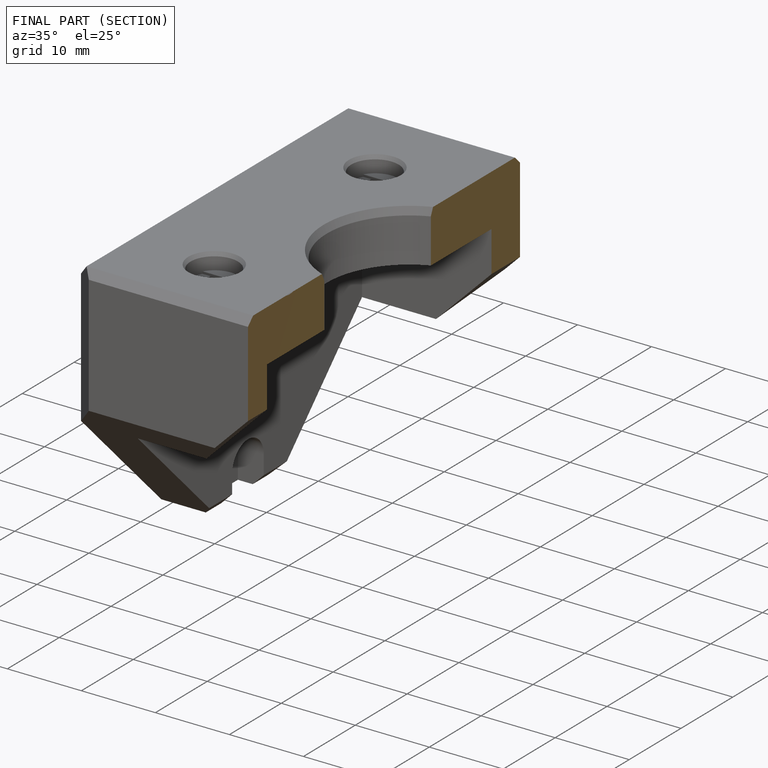
[diagram: finished part — half-section view (interior)]
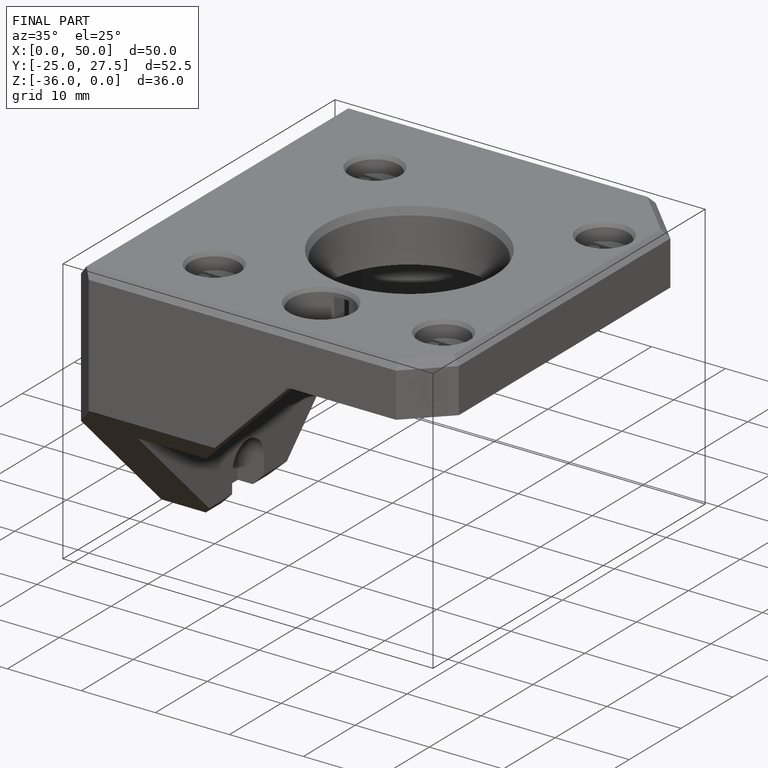
[diagram: finished part — iso view with bounding-box wireframe]
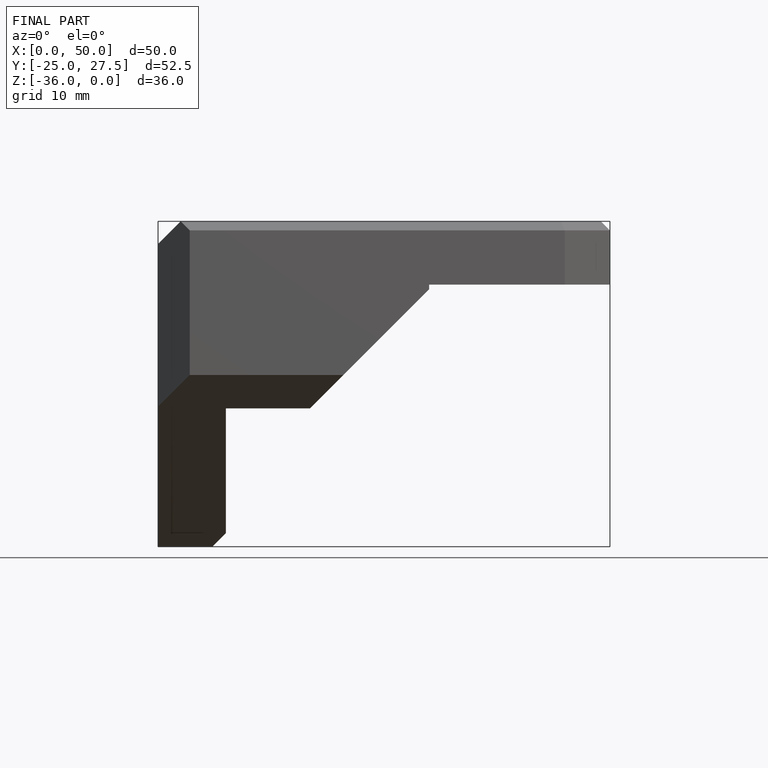
[diagram: finished part — front view with bounding-box wireframe]
